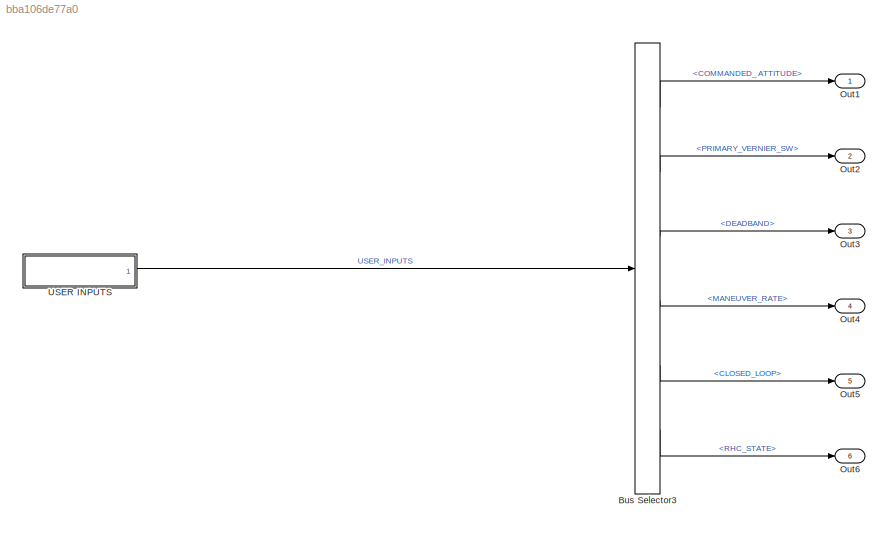
MODEL slx_bba106de77a0
KIND model
CONFIG AbsTol = auto
CONFIG EnableMultiTasking = off
CONFIG FixedStep = 0.200000
CONFIG MaxStep = auto
CONFIG MinStep = auto
CONFIG RelTol = 1e-3
CONFIG SampleTimeConstraint = Unconstrained
CONFIG Solver = FixedStepAuto
CONFIG SolverName = FixedStepAuto
CONFIG StartTime = 0.0
CONFIG StopTime = 10.0
BLOCK [BusSelector] Bus Selector3
  OutputAsBus = off
  OutputSignals = COMMANDED_ ATTITUDE,PRIMARY_VERNIER_SW,DEADBAND,MANEUVER_RATE,CLOSED_LOOP,RHC_STATE
  Ports = [1, 6]
BLOCK [Outport] Out1
  IconDisplay = Port number
BLOCK [Outport] Out2
  IconDisplay = Port number
  Port = 2
BLOCK [Outport] Out3
  IconDisplay = Port number
  Port = 3
BLOCK [Outport] Out4
  IconDisplay = Port number
  Port = 4
BLOCK [Outport] Out5
  IconDisplay = Port number
  Port = 5
BLOCK [Outport] Out6
  IconDisplay = Port number
  Port = 6
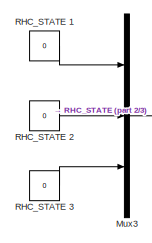
[diagram: USER INPUTS - part 1/3, top left region]
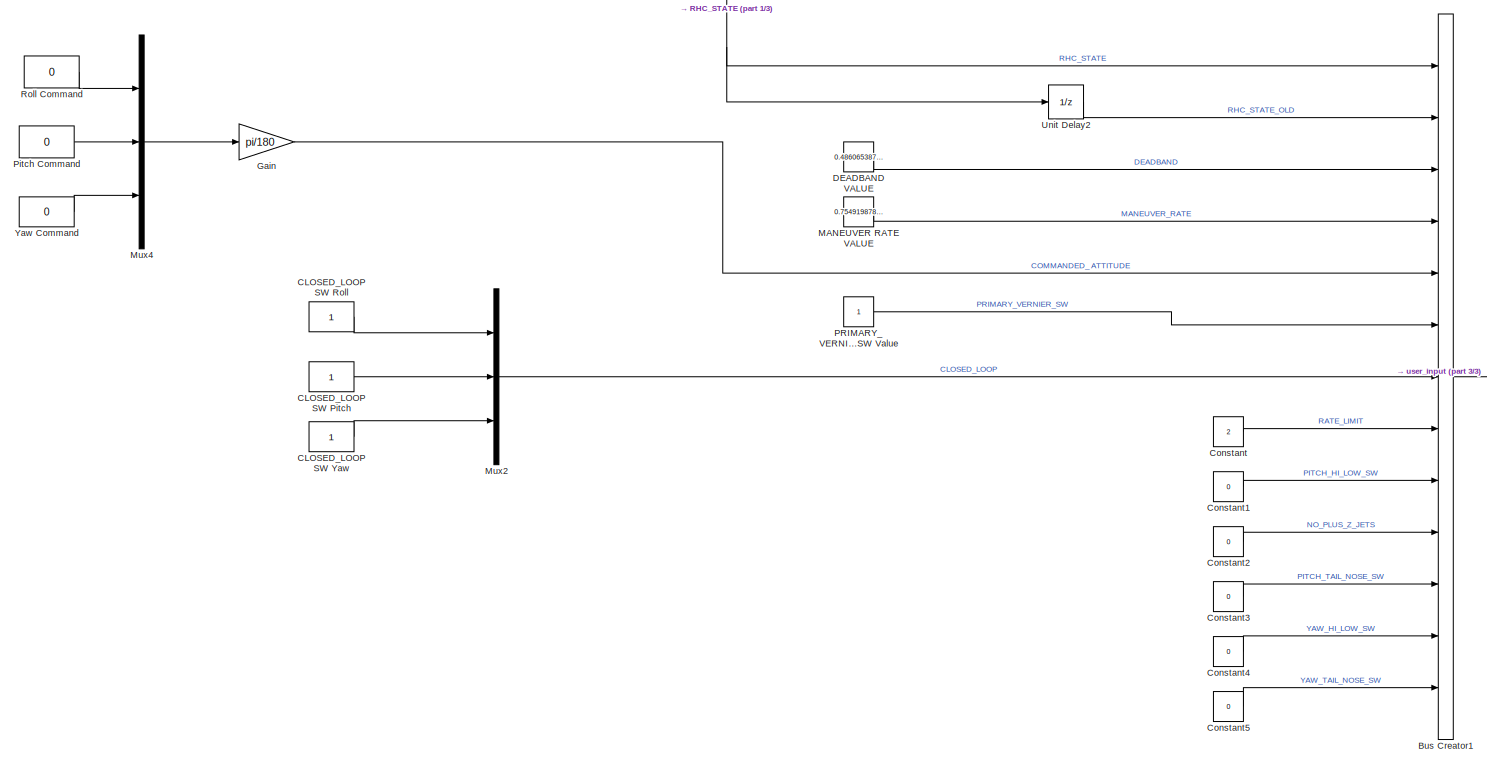
[diagram: USER INPUTS - part 2/3, full width, middle band]
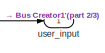
[diagram: USER INPUTS - part 3/3, middle right region]
BLOCK [SubSystem] USER INPUTS
  Ports = [0, 1]
  Priority = 1
  RequestExecContextInheritance = off
  Variant = off
BLOCK [BusCreator] USER INPUTS/Bus Creator1
  DisplayOption = bar
  InheritFromInputs = on
  Inputs = 13
  Ports = [13, 1]
BLOCK [Constant] USER INPUTS/CLOSED_LOOP SW Pitch
  OutDataTypeStr = boolean
BLOCK [Constant] USER INPUTS/CLOSED_LOOP SW Roll
  OutDataTypeStr = boolean
BLOCK [Constant] USER INPUTS/CLOSED_LOOP SW Yaw
  OutDataTypeStr = boolean
BLOCK [Constant] USER INPUTS/Constant
  Value = 2
BLOCK [Constant] USER INPUTS/Constant1
  OutDataTypeStr = boolean
  Value = 0
BLOCK [Constant] USER INPUTS/Constant2
  OutDataTypeStr = boolean
  Value = 0
BLOCK [Constant] USER INPUTS/Constant3
  OutDataTypeStr = boolean
  Value = 0
BLOCK [Constant] USER INPUTS/Constant4
  OutDataTypeStr = boolean
  Value = 0
BLOCK [Constant] USER INPUTS/Constant5
  OutDataTypeStr = boolean
  Value = 0
BLOCK [Constant] USER INPUTS/DEADBAND VALUE
  Value = 0.4860653877258
BLOCK [Gain] USER INPUTS/Gain
  Gain = pi/180
  OutDataTypeStr = Inherit: Inherit via internal rule
  ParamDataTypeStr = Inherit: Inherit via internal rule
  SaturateOnIntegerOverflow = off
BLOCK [Constant] USER INPUTS/MANEUVER RATE VALUE
  Value = 0.7549198786418
BLOCK [Mux] USER INPUTS/Mux2
  DisplayOption = bar
  Inputs = 3
  Ports = [3, 1]
BLOCK [Mux] USER INPUTS/Mux3
  DisplayOption = bar
  Inputs = 3
  Ports = [3, 1]
BLOCK [Mux] USER INPUTS/Mux4
  DisplayOption = bar
  Inputs = 3
  Ports = [3, 1]
BLOCK [Constant] USER INPUTS/PRIMARY_VERNIER_SW Value
BLOCK [Constant] USER INPUTS/Pitch Command
  Value = 0
BLOCK [Constant] USER INPUTS/RHC_STATE 1
  OutDataTypeStr = int8
  Value = 0
BLOCK [Constant] USER INPUTS/RHC_STATE 2
  OutDataTypeStr = int8
  Value = 0
BLOCK [Constant] USER INPUTS/RHC_STATE 3
  OutDataTypeStr = int8
  Value = 0
BLOCK [Constant] USER INPUTS/Roll Command
  Value = 0
BLOCK [UnitDelay] USER INPUTS/Unit Delay2
  InputProcessing = Elements as channels (sample based)
  SampleTime = -1
BLOCK [Constant] USER INPUTS/Yaw Command
  Value = 0
BLOCK [Outport] USER INPUTS/user_input
  IconDisplay = Port number
LINE Bus Selector3:1 -> Out1:1
LINE Bus Selector3:2 -> Out2:1
LINE Bus Selector3:3 -> Out3:1
LINE Bus Selector3:4 -> Out4:1
LINE Bus Selector3:5 -> Out5:1
LINE Bus Selector3:6 -> Out6:1
LINE USER INPUTS/Bus Creator1:1 -> USER INPUTS/user_input:1
LINE USER INPUTS/CLOSED_LOOP SW Pitch:1 -> USER INPUTS/Mux2:2
LINE USER INPUTS/CLOSED_LOOP SW Roll:1 -> USER INPUTS/Mux2:1
LINE USER INPUTS/CLOSED_LOOP SW Yaw:1 -> USER INPUTS/Mux2:3
LINE USER INPUTS/Constant1:1 -> USER INPUTS/Bus Creator1:9
LINE USER INPUTS/Constant2:1 -> USER INPUTS/Bus Creator1:10
LINE USER INPUTS/Constant3:1 -> USER INPUTS/Bus Creator1:11
LINE USER INPUTS/Constant4:1 -> USER INPUTS/Bus Creator1:12
LINE USER INPUTS/Constant5:1 -> USER INPUTS/Bus Creator1:13
LINE USER INPUTS/Constant:1 -> USER INPUTS/Bus Creator1:8
LINE USER INPUTS/DEADBAND VALUE:1 -> USER INPUTS/Bus Creator1:3
LINE USER INPUTS/Gain:1 -> USER INPUTS/Bus Creator1:5
LINE USER INPUTS/MANEUVER RATE VALUE:1 -> USER INPUTS/Bus Creator1:4
LINE USER INPUTS/Mux2:1 -> USER INPUTS/Bus Creator1:7
NET USER INPUTS/Mux3:1 -> USER INPUTS/Bus Creator1:1, USER INPUTS/Unit Delay2:1
LINE USER INPUTS/Mux4:1 -> USER INPUTS/Gain:1
LINE USER INPUTS/PRIMARY_VERNIER_SW Value:1 -> USER INPUTS/Bus Creator1:6
LINE USER INPUTS/Pitch Command:1 -> USER INPUTS/Mux4:2
LINE USER INPUTS/RHC_STATE 1:1 -> USER INPUTS/Mux3:1
LINE USER INPUTS/RHC_STATE 2:1 -> USER INPUTS/Mux3:2
LINE USER INPUTS/RHC_STATE 3:1 -> USER INPUTS/Mux3:3
LINE USER INPUTS/Roll Command:1 -> USER INPUTS/Mux4:1
LINE USER INPUTS/Unit Delay2:1 -> USER INPUTS/Bus Creator1:2
LINE USER INPUTS/Yaw Command:1 -> USER INPUTS/Mux4:3
LINE USER INPUTS:1 -> Bus Selector3:1
note: NET lines group one-source signal fan-out (src -> all destinations, sorted); 1:1 wires keep LINE
